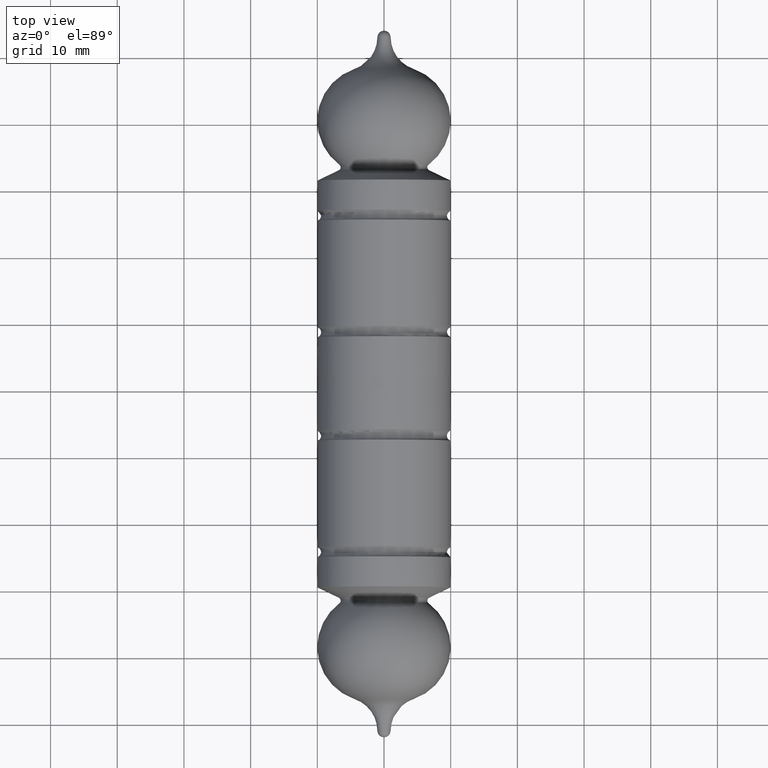
[diagram: clean part render]
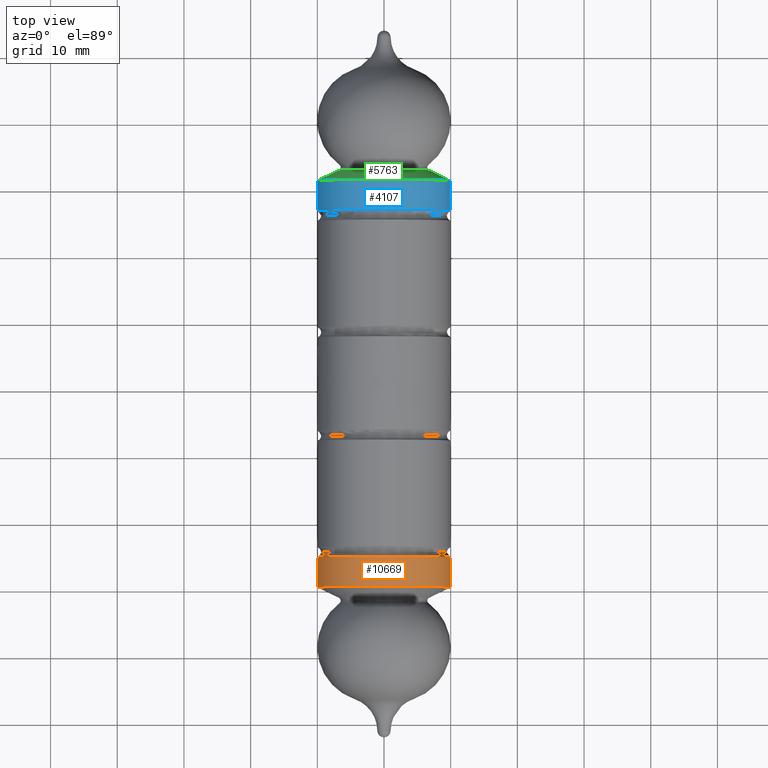
[diagram: same view with three faces highlighted in distinct colors, each labeled with its STEP entity id]
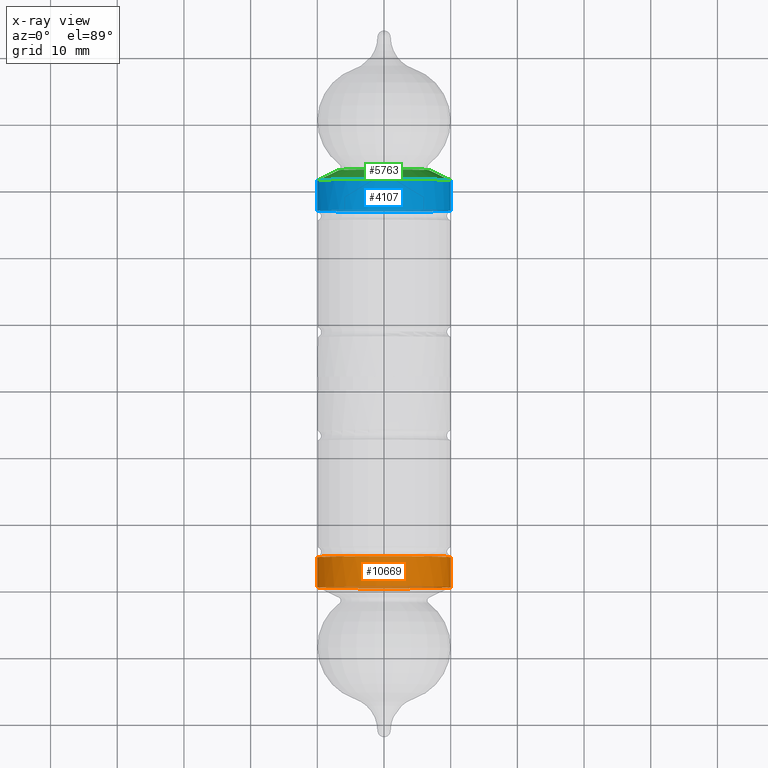
[diagram: x-ray of the same camera — body ghosted, the three highlighted faces saturated]
A machine part, top view with three faces highlighted in distinct colors.
The next image is the same camera in x-ray (body ghosted, the three faces saturated) — at least one of them is partly hidden behind the body in this view.
Their STEP definitions:

[orange] entity #10669 — the highlighted cylindrical surface (bore or boss wall) has radius 10 mm, axis along (0, 1, 0).
#485 = EDGE_CURVE ( 'NONE', #7928, #7928, #11892, .T. ) ;
#1346 = CARTESIAN_POINT ( 'NONE',  ( -1.452970778649402563E-15, -25.00000000000000711, 0.000000000000000000 ) ) ;
#1850 = CIRCLE ( 'NONE', #8065, 10.00000000000000355 ) ;
#1918 = FACE_OUTER_BOUND ( 'NONE', #2353, .T. ) ;
#2236 = DIRECTION ( 'NONE',  ( 5.811883114597608921E-17, 1.000000000000000000, -0.000000000000000000 ) ) ;
#2283 = DIRECTION ( 'NONE',  ( 0.000000000000000000, 0.000000000000000000, 1.000000000000000000 ) ) ;
#2353 = EDGE_LOOP ( 'NONE', ( #11073 ) ) ;
#2777 = ORIENTED_EDGE ( 'NONE', *, *, #9459, .T. ) ;
#2849 = AXIS2_PLACEMENT_3D ( 'NONE', #4752, #2236, #10586 ) ;
#3920 = CARTESIAN_POINT ( 'NONE',  ( -1.714505518806294638E-15, -29.50000000000000000, 0.000000000000000000 ) ) ;
#3967 = EDGE_LOOP ( 'NONE', ( #2777 ) ) ;
#4355 = FACE_OUTER_BOUND ( 'NONE', #3967, .T. ) ;
#4633 = VERTEX_POINT ( 'NONE', #11240 ) ;
#4752 = CARTESIAN_POINT ( 'NONE',  ( 0.000000000000000000, 0.000000000000000000, 0.000000000000000000 ) ) ;
#4854 = DIRECTION ( 'NONE',  ( -1.000000000000000000, 0.000000000000000000, 0.000000000000000000 ) ) ;
#5755 = CARTESIAN_POINT ( 'NONE',  ( -1.452970778649402563E-15, -25.00000000000000711, 10.00000000000000533 ) ) ;
#7506 = DIRECTION ( 'NONE',  ( 5.811883114597608921E-17, 1.000000000000000000, -0.000000000000000000 ) ) ;
#7753 = DIRECTION ( 'NONE',  ( -0.000000000000000000, 1.000000000000000000, -0.000000000000000000 ) ) ;
#7928 = VERTEX_POINT ( 'NONE', #5755 ) ;
#8065 = AXIS2_PLACEMENT_3D ( 'NONE', #3920, #7506, #4854 ) ;
#8531 = AXIS2_PLACEMENT_3D ( 'NONE', #1346, #7753, #2283 ) ;
#9459 = EDGE_CURVE ( 'NONE', #4633, #4633, #1850, .T. ) ;
#10287 = CYLINDRICAL_SURFACE ( 'NONE', #2849, 10.00000000000000533 ) ;
#10586 = DIRECTION ( 'NONE',  ( -1.000000000000000000, 5.811883114597608921E-17, 0.000000000000000000 ) ) ;
#10669 = ADVANCED_FACE ( 'NONE', ( #4355, #1918 ), #10287, .T. ) ;
#11073 = ORIENTED_EDGE ( 'NONE', *, *, #485, .F. ) ;
#11240 = CARTESIAN_POINT ( 'NONE',  ( -10.00000000000000533, -29.50000000000000000, 0.000000000000000000 ) ) ;
#11892 = CIRCLE ( 'NONE', #8531, 10.00000000000000533 ) ;

[blue] entity #4107 — the highlighted cylindrical surface (bore or boss wall) has radius 10 mm, axis along (-0, -1, -0).
#186 = CARTESIAN_POINT ( 'NONE',  ( -1.452970778649411438E-15, -25.00000000000000711, 10.00000000000004619 ) ) ;
#237 = EDGE_LOOP ( 'NONE', ( #9414 ) ) ;
#454 = FACE_OUTER_BOUND ( 'NONE', #237, .T. ) ;
#573 = DIRECTION ( 'NONE',  ( 5.811883114597632341E-17, 1.000000000000000000, -2.773339119917631671E-32 ) ) ;
#1119 = AXIS2_PLACEMENT_3D ( 'NONE', #6093, #573, #5205 ) ;
#1463 = CYLINDRICAL_SURFACE ( 'NONE', #1119, 10.00000000000004619 ) ;
#2441 = DIRECTION ( 'NONE',  ( 5.811883114597632341E-17, 1.000000000000000000, -2.773339119917631671E-32 ) ) ;
#2523 = AXIS2_PLACEMENT_3D ( 'NONE', #7534, #10293, #8309 ) ;
#3096 = EDGE_LOOP ( 'NONE', ( #8396 ) ) ;
#3586 = EDGE_CURVE ( 'NONE', #7066, #7066, #11694, .T. ) ;
#4107 = ADVANCED_FACE ( 'NONE', ( #454, #6388 ), #1463, .T. ) ;
#5139 = DIRECTION ( 'NONE',  ( -1.000000000000000000, 0.000000000000000000, 0.000000000000000000 ) ) ;
#5205 = DIRECTION ( 'NONE',  ( -1.000000000000000000, 5.811883114597584269E-17, -1.611832280210216235E-48 ) ) ;
#5888 = AXIS2_PLACEMENT_3D ( 'NONE', #7027, #2441, #5139 ) ;
#6093 = CARTESIAN_POINT ( 'NONE',  ( 0.000000000000000000, 0.000000000000000000, 0.000000000000000000 ) ) ;
#6388 = FACE_OUTER_BOUND ( 'NONE', #3096, .T. ) ;
#7027 = CARTESIAN_POINT ( 'NONE',  ( -1.714505518806301540E-15, -29.50000000000000000, 8.181350403757014688E-31 ) ) ;
#7066 = VERTEX_POINT ( 'NONE', #7514 ) ;
#7514 = CARTESIAN_POINT ( 'NONE',  ( -10.00000000000004619, -29.50000000000000000, 8.181350403757014688E-31 ) ) ;
#7534 = CARTESIAN_POINT ( 'NONE',  ( -1.452970778649411438E-15, -25.00000000000000711, 6.933347799794074470E-31 ) ) ;
#8309 = DIRECTION ( 'NONE',  ( 0.000000000000000000, 0.000000000000000000, 1.000000000000000000 ) ) ;
#8396 = ORIENTED_EDGE ( 'NONE', *, *, #9752, .F. ) ;
#9414 = ORIENTED_EDGE ( 'NONE', *, *, #3586, .T. ) ;
#9752 = EDGE_CURVE ( 'NONE', #10125, #10125, #10224, .T. ) ;
#10125 = VERTEX_POINT ( 'NONE', #186 ) ;
#10224 = CIRCLE ( 'NONE', #2523, 10.00000000000004619 ) ;
#10293 = DIRECTION ( 'NONE',  ( 8.320017359752876401E-32, 1.000000000000000000, -2.773339119917631671E-32 ) ) ;
#11694 = CIRCLE ( 'NONE', #5888, 10.00000000000004441 ) ;

[green] entity #5763 — the highlighted conical surface has half-angle 64.281 deg.
#432 = FACE_OUTER_BOUND ( 'NONE', #977, .T. ) ;
#977 = EDGE_LOOP ( 'NONE', ( #6943 ) ) ;
#1423 = CONICAL_SURFACE ( 'NONE', #1658, 6.783021983517608433, 1.121917134614727640 ) ;
#1658 = AXIS2_PLACEMENT_3D ( 'NONE', #5756, #10237, #7629 ) ;
#2441 = DIRECTION ( 'NONE',  ( 5.811883114597632341E-17, 1.000000000000000000, -2.773339119917631671E-32 ) ) ;
#3586 = EDGE_CURVE ( 'NONE', #7066, #7066, #11694, .T. ) ;
#3856 = CARTESIAN_POINT ( 'NONE',  ( -6.783021983517610209, -31.04953297527637091, 8.611088445550645897E-31 ) ) ;
#4169 = FACE_BOUND ( 'NONE', #11878, .T. ) ;
#5139 = DIRECTION ( 'NONE',  ( -1.000000000000000000, 0.000000000000000000, 0.000000000000000000 ) ) ;
#5609 = ORIENTED_EDGE ( 'NONE', *, *, #7026, .T. ) ;
#5756 = CARTESIAN_POINT ( 'NONE',  ( -1.804562564151510886E-15, -31.04953297527637091, 8.611088445550645897E-31 ) ) ;
#5762 = DIRECTION ( 'NONE',  ( 5.811883114597632341E-17, 1.000000000000000000, -2.773339119917631671E-32 ) ) ;
#5763 = ADVANCED_FACE ( 'NONE', ( #432, #4169 ), #1423, .T. ) ;
#5888 = AXIS2_PLACEMENT_3D ( 'NONE', #7027, #2441, #5139 ) ;
#6943 = ORIENTED_EDGE ( 'NONE', *, *, #3586, .F. ) ;
#7026 = EDGE_CURVE ( 'NONE', #10990, #10990, #7489, .T. ) ;
#7027 = CARTESIAN_POINT ( 'NONE',  ( -1.714505518806301540E-15, -29.50000000000000000, 8.181350403757014688E-31 ) ) ;
#7066 = VERTEX_POINT ( 'NONE', #7514 ) ;
#7489 = CIRCLE ( 'NONE', #10940, 6.783021983517608433 ) ;
#7514 = CARTESIAN_POINT ( 'NONE',  ( -10.00000000000004619, -29.50000000000000000, 8.181350403757014688E-31 ) ) ;
#7523 = CARTESIAN_POINT ( 'NONE',  ( -1.804562564151510886E-15, -31.04953297527637091, 8.611088445550645897E-31 ) ) ;
#7565 = DIRECTION ( 'NONE',  ( -1.000000000000000000, 0.000000000000000000, 0.000000000000000000 ) ) ;
#7629 = DIRECTION ( 'NONE',  ( -1.000000000000000000, 0.000000000000000000, 0.000000000000000000 ) ) ;
#10237 = DIRECTION ( 'NONE',  ( 5.811883114597632341E-17, 1.000000000000000000, -2.773339119917631671E-32 ) ) ;
#10940 = AXIS2_PLACEMENT_3D ( 'NONE', #7523, #5762, #7565 ) ;
#10990 = VERTEX_POINT ( 'NONE', #3856 ) ;
#11694 = CIRCLE ( 'NONE', #5888, 10.00000000000004441 ) ;
#11878 = EDGE_LOOP ( 'NONE', ( #5609 ) ) ;